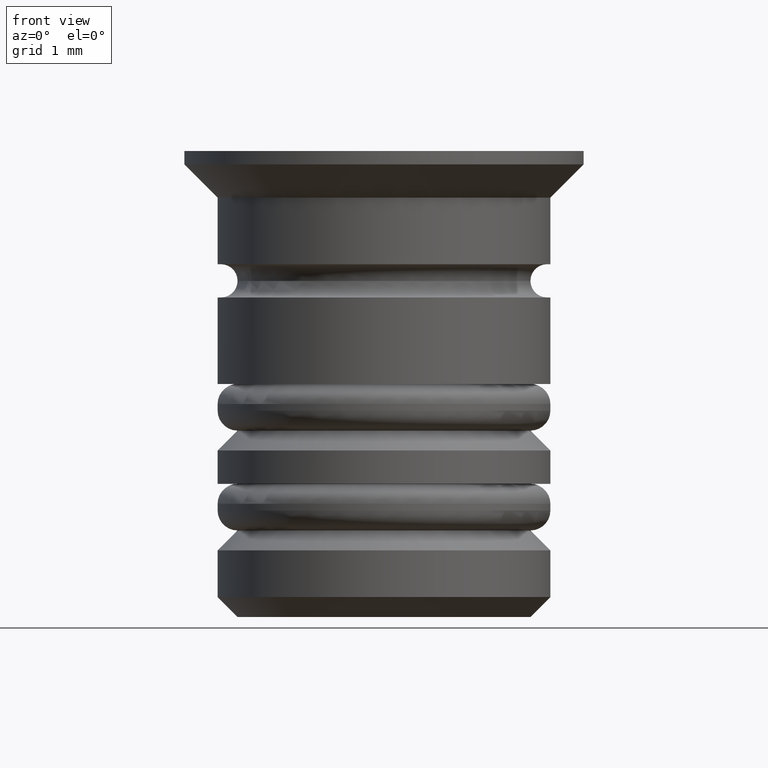
[diagram: clean part render]
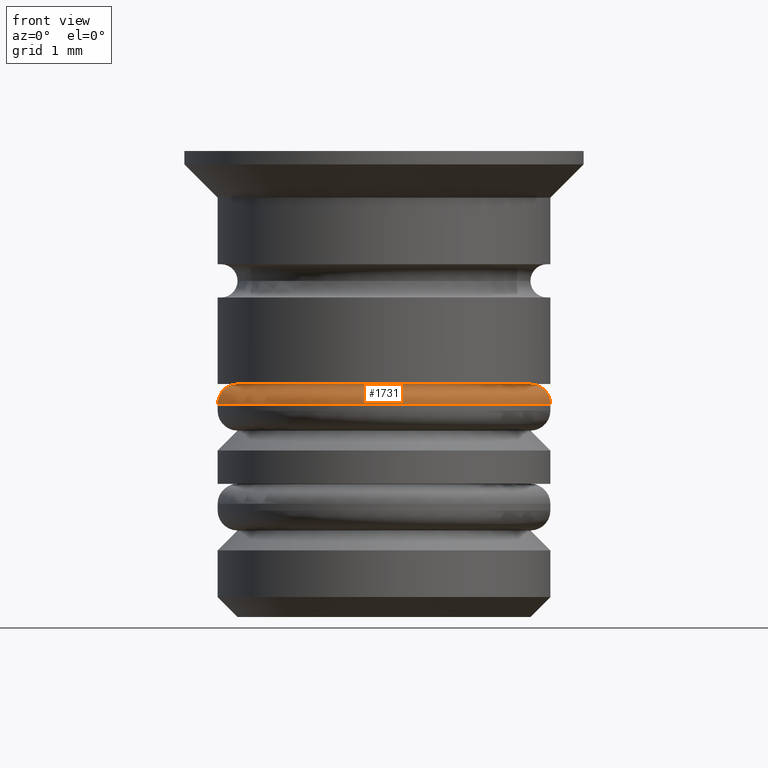
[diagram: same view with one face highlighted and labeled with its STEP entity id]
A machine part, front view. The second image highlights one B-rep face of the part: STEP entity #1731.
In plain terms, the highlighted toroidal blend (fillet) surface has major radius 2.2 mm and minor (blend) radius 0.3 mm.
Its self-contained STEP definition (entity closure, byte-faithful):
#7 = DIRECTION ( 'NONE',  ( -1.000000000000000000, -1.224646799147353207E-16, 0.000000000000000000 ) ) ;
#26 = CARTESIAN_POINT ( 'NONE',  ( 2.200000000000001954, 2.694222958124179472E-16, -3.800000000000003819 ) ) ;
#27 = VERTEX_POINT ( 'NONE', #1148 ) ;
#89 = CARTESIAN_POINT ( 'NONE',  ( 2.500000000000001776, 0.000000000000000000, -3.800000000000003819 ) ) ;
#199 = FACE_OUTER_BOUND ( 'NONE', #1273, .T. ) ;
#208 = TOROIDAL_SURFACE ( 'NONE', #1236, 2.200000000000001954, 0.2999999999999999889 ) ;
#256 = CARTESIAN_POINT ( 'NONE',  ( 0.000000000000000000, 0.000000000000000000, -3.800000000000003819 ) ) ;
#268 = AXIS2_PLACEMENT_3D ( 'NONE', #988, #570, #1549 ) ;
#349 = DIRECTION ( 'NONE',  ( -1.000000000000000000, 0.000000000000000000, 0.000000000000000000 ) ) ;
#365 = AXIS2_PLACEMENT_3D ( 'NONE', #1221, #1083, #533 ) ;
#381 = EDGE_CURVE ( 'NONE', #1294, #555, #1628, .T. ) ;
#533 = DIRECTION ( 'NONE',  ( 0.000000000000000000, 0.000000000000000000, -1.000000000000000000 ) ) ;
#555 = VERTEX_POINT ( 'NONE', #1016 ) ;
#570 = DIRECTION ( 'NONE',  ( -0.000000000000000000, -0.000000000000000000, 1.000000000000000000 ) ) ;
#582 = DIRECTION ( 'NONE',  ( -1.224646799147353207E-16, 1.000000000000000000, 0.000000000000000000 ) ) ;
#638 = VERTEX_POINT ( 'NONE', #89 ) ;
#750 = DIRECTION ( 'NONE',  ( 0.000000000000000000, 0.000000000000000000, -1.000000000000000000 ) ) ;
#827 = CARTESIAN_POINT ( 'NONE',  ( -2.200000000000001954, 0.000000000000000000, -3.500000000000003997 ) ) ;
#841 = ORIENTED_EDGE ( 'NONE', *, *, #875, .T. ) ;
#873 = CIRCLE ( 'NONE', #1727, 2.500000000000001776 ) ;
#875 = EDGE_CURVE ( 'NONE', #1294, #27, #926, .T. ) ;
#914 = AXIS2_PLACEMENT_3D ( 'NONE', #26, #582, #7 ) ;
#926 = CIRCLE ( 'NONE', #365, 0.2999999999999999334 ) ;
#935 = EDGE_CURVE ( 'NONE', #638, #27, #873, .T. ) ;
#988 = CARTESIAN_POINT ( 'NONE',  ( 0.000000000000000000, 0.000000000000000000, -3.500000000000003997 ) ) ;
#993 = DIRECTION ( 'NONE',  ( 0.000000000000000000, 0.000000000000000000, -1.000000000000000000 ) ) ;
#1016 = CARTESIAN_POINT ( 'NONE',  ( 2.200000000000001954, 2.877919977996282293E-16, -3.500000000000003997 ) ) ;
#1083 = DIRECTION ( 'NONE',  ( -0.000000000000000000, -1.000000000000000000, -0.000000000000000000 ) ) ;
#1110 = DIRECTION ( 'NONE',  ( -1.000000000000000000, 0.000000000000000000, 0.000000000000000000 ) ) ;
#1148 = CARTESIAN_POINT ( 'NONE',  ( -2.500000000000001776, 3.061616997868385606E-16, -3.800000000000003819 ) ) ;
#1177 = CARTESIAN_POINT ( 'NONE',  ( 0.000000000000000000, 0.000000000000000000, -3.800000000000003819 ) ) ;
#1221 = CARTESIAN_POINT ( 'NONE',  ( -2.200000000000001954, 0.000000000000000000, -3.800000000000003819 ) ) ;
#1236 = AXIS2_PLACEMENT_3D ( 'NONE', #1177, #750, #349 ) ;
#1273 = EDGE_LOOP ( 'NONE', ( #1661, #1470, #841, #1625 ) ) ;
#1294 = VERTEX_POINT ( 'NONE', #827 ) ;
#1470 = ORIENTED_EDGE ( 'NONE', *, *, #381, .F. ) ;
#1497 = EDGE_CURVE ( 'NONE', #555, #638, #1711, .T. ) ;
#1549 = DIRECTION ( 'NONE',  ( -1.000000000000000000, 0.000000000000000000, 0.000000000000000000 ) ) ;
#1625 = ORIENTED_EDGE ( 'NONE', *, *, #935, .F. ) ;
#1628 = CIRCLE ( 'NONE', #268, 2.200000000000001954 ) ;
#1661 = ORIENTED_EDGE ( 'NONE', *, *, #1497, .F. ) ;
#1711 = CIRCLE ( 'NONE', #914, 0.2999999999999999334 ) ;
#1727 = AXIS2_PLACEMENT_3D ( 'NONE', #256, #993, #1110 ) ;
#1731 = ADVANCED_FACE ( 'NONE', ( #199 ), #208, .T. ) ;